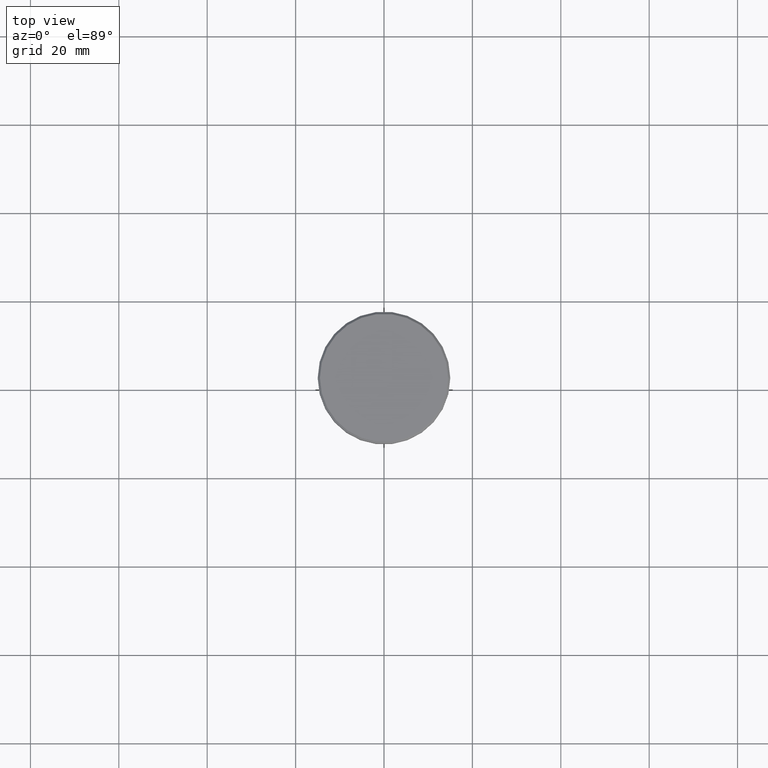
[diagram: clean part render]
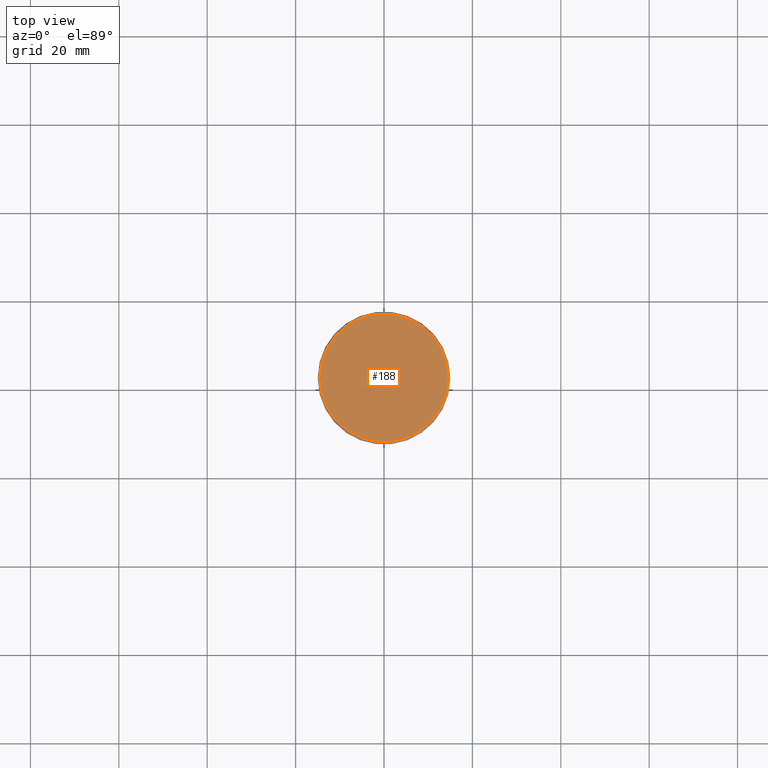
[diagram: same view with one face highlighted and labeled with its STEP entity id]
A machine part, top view. The second image highlights one B-rep face of the part: STEP entity #188.
In plain terms, the highlighted planar face has unit normal (0, -0, 1).
Its self-contained STEP definition (entity closure, byte-faithful):
#40 = CARTESIAN_POINT ( 'NONE',  ( -14.49999999999999645, 0.000000000000000000, 0.000000000000000000 ) ) ;
#55 = DIRECTION ( 'NONE',  ( -0.000000000000000000, -0.000000000000000000, 1.000000000000000000 ) ) ;
#149 = DIRECTION ( 'NONE',  ( 1.000000000000000000, 0.000000000000000000, 0.000000000000000000 ) ) ;
#188 = ADVANCED_FACE ( 'NONE', ( #1088 ), #279, .T. ) ;
#196 = EDGE_CURVE ( 'NONE', #1123, #785, #617, .T. ) ;
#215 = AXIS2_PLACEMENT_3D ( 'NONE', #647, #1001, #149 ) ;
#219 = AXIS2_PLACEMENT_3D ( 'NONE', #509, #55, #587 ) ;
#233 = DIRECTION ( 'NONE',  ( -0.000000000000000000, -0.000000000000000000, 1.000000000000000000 ) ) ;
#279 = PLANE ( 'NONE',  #215 ) ;
#282 = EDGE_LOOP ( 'NONE', ( #1140, #727 ) ) ;
#509 = CARTESIAN_POINT ( 'NONE',  ( 0.000000000000000000, 0.000000000000000000, 0.000000000000000000 ) ) ;
#510 = DIRECTION ( 'NONE',  ( 1.000000000000000000, 0.000000000000000000, 0.000000000000000000 ) ) ;
#558 = AXIS2_PLACEMENT_3D ( 'NONE', #1040, #233, #510 ) ;
#587 = DIRECTION ( 'NONE',  ( 1.000000000000000000, 0.000000000000000000, 0.000000000000000000 ) ) ;
#617 = CIRCLE ( 'NONE', #558, 14.49999999999999645 ) ;
#647 = CARTESIAN_POINT ( 'NONE',  ( 0.000000000000000000, 0.000000000000000000, 0.000000000000000000 ) ) ;
#696 = CARTESIAN_POINT ( 'NONE',  ( 14.49999999999999645, 1.806354028742345802E-15, 0.000000000000000000 ) ) ;
#706 = EDGE_CURVE ( 'NONE', #785, #1123, #973, .T. ) ;
#727 = ORIENTED_EDGE ( 'NONE', *, *, #196, .T. ) ;
#785 = VERTEX_POINT ( 'NONE', #40 ) ;
#973 = CIRCLE ( 'NONE', #219, 14.49999999999999645 ) ;
#1001 = DIRECTION ( 'NONE',  ( 0.000000000000000000, -0.000000000000000000, 1.000000000000000000 ) ) ;
#1040 = CARTESIAN_POINT ( 'NONE',  ( 0.000000000000000000, 0.000000000000000000, 0.000000000000000000 ) ) ;
#1088 = FACE_OUTER_BOUND ( 'NONE', #282, .T. ) ;
#1123 = VERTEX_POINT ( 'NONE', #696 ) ;
#1140 = ORIENTED_EDGE ( 'NONE', *, *, #706, .T. ) ;